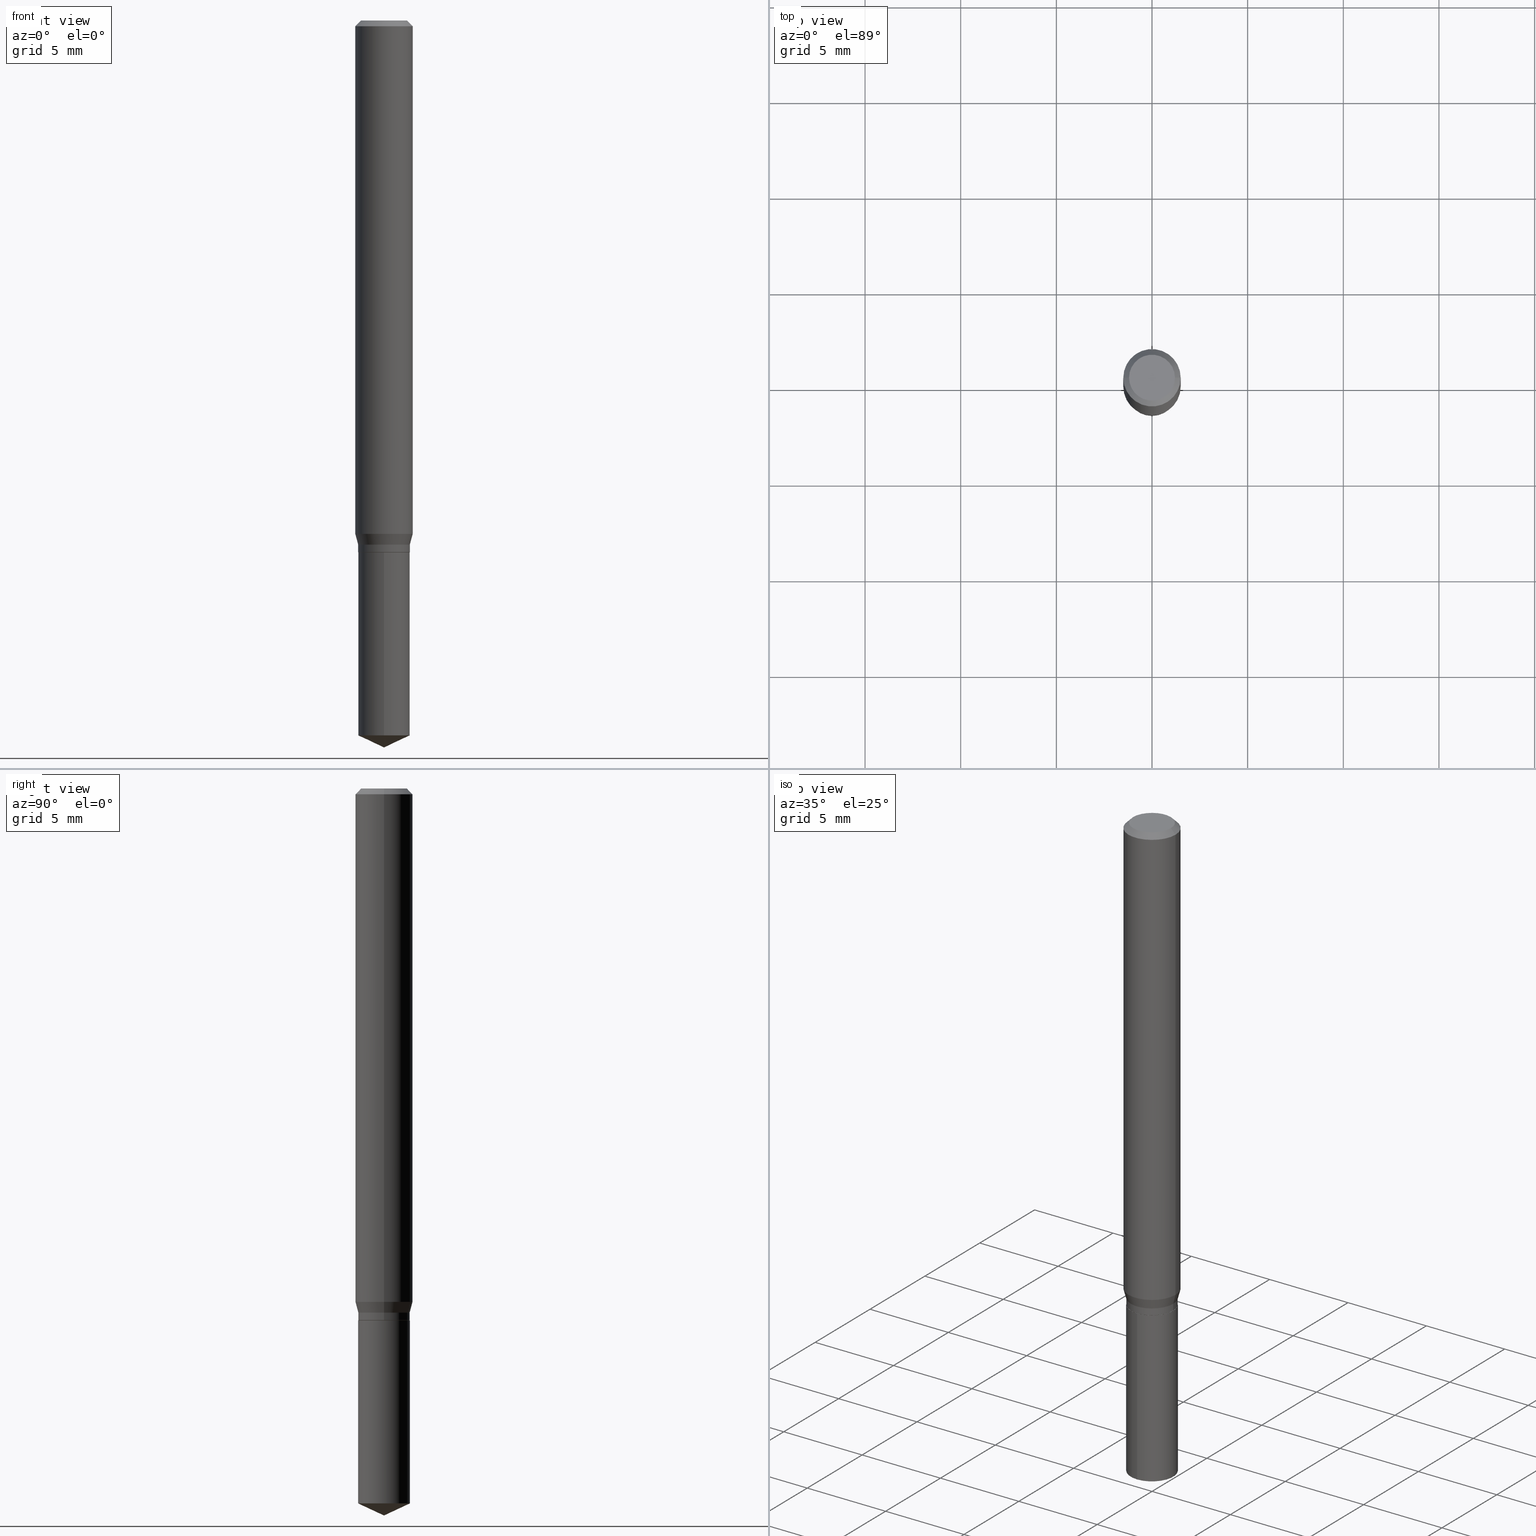
[diagram: canonical four-view strip — front | top / right | iso, engineering-drawing reading convention]
A machine part, canonical four-view strip (front | top / right | iso — engineering-drawing reading convention). The complete STEP part file that produces these views, byte-faithful:
ISO-10303-21;
HEADER;
FILE_DESCRIPTION (( 'STEP AP203' ),
    '1' );
FILE_NAME ('08028.STEP',
    '2024-04-24T09:17:26',
    ( '' ),
    ( '' ),
    'SwSTEP 2.0',
    'SolidWorks 2023',
    '' );
FILE_SCHEMA (( 'CONFIG_CONTROL_DESIGN' ));
ENDSEC;

DATA;
#1 = PLANE ( 'NONE',  #464 ) ;
#2 = DIRECTION ( 'NONE',  ( -2.445468806185136597E-29, 3.491481338843145583E-15, 1.000000000000000000 ) ) ;
#3 = AXIS2_PLACEMENT_3D ( 'NONE', #309, #272, #78 ) ;
#4 = AXIS2_PLACEMENT_3D ( 'NONE', #86, #268, #162 ) ;
#5 = CALENDAR_DATE ( 2024, 24, 4 ) ;
#6 = ORIENTED_EDGE ( 'NONE', *, *, #259, .T. ) ;
#7 = DIRECTION ( 'NONE',  ( -2.445468806185136597E-29, 3.491481338843145583E-15, 1.000000000000000000 ) ) ;
#8 = PERSON_AND_ORGANIZATION_ROLE ( 'design_owner' ) ;
#9 = AXIS2_PLACEMENT_3D ( 'NONE', #139, #474, #437 ) ;
#10 = DIRECTION ( 'NONE',  ( -2.445468806185136597E-29, 3.491481338843145583E-15, 1.000000000000000000 ) ) ;
#11 = EDGE_LOOP ( 'NONE', ( #376, #87, #143, #140 ) ) ;
#12 = VERTEX_POINT ( 'NONE', #189 ) ;
#13 = CALENDAR_DATE ( 2024, 24, 4 ) ;
#14 = CARTESIAN_POINT ( 'NONE',  ( 2.675342873966538993E-29, -3.819680584694400481E-15, -1.093999999999999861 ) ) ;
#15 = AXIS2_PLACEMENT_3D ( 'NONE', #65, #215, #406 ) ;
#16 = LOCAL_TIME ( 5, 17, 26.00000000000000000, #363 ) ;
#17 = CIRCLE ( 'NONE', #125, 0.05904999999999999832 ) ;
#18 = DIRECTION ( 'NONE',  ( -1.000000000000000000, 6.982962677686265922E-15, -4.876176775795935793E-29 ) ) ;
#19 = APPROVAL ( #305, 'UNSPECIFIED' ) ;
#20 = DIRECTION ( 'NONE',  ( -2.445458899330790108E-29, 3.491495526022433205E-15, 1.000000000000000000 ) ) ;
#21 = DIRECTION ( 'NONE',  ( -2.445468806185136597E-29, 3.491481338843145583E-15, 1.000000000000000000 ) ) ;
#22 = VERTEX_POINT ( 'NONE', #228 ) ;
#23 = APPROVAL ( #343, 'UNSPECIFIED' ) ;
#24 = VECTOR ( 'NONE', #380, 39.37007874015748143 ) ;
#25 = CARTESIAN_POINT ( 'NONE',  ( 0.000000000000000000, 0.000000000000000000, 0.000000000000000000 ) ) ;
#26 = LINE ( 'NONE', #264, #24 ) ;
#27 = CARTESIAN_POINT ( 'NONE',  ( 0.05904999999999999832, -4.463468013801466955E-16, -0.01181000000000007218 ) ) ;
#28 = ORIENTED_EDGE ( 'NONE', *, *, #482, .T. ) ;
#29 = EDGE_CURVE ( 'NONE', #239, #308, #37, .T. ) ;
#30 = EDGE_CURVE ( 'NONE', #217, #249, #197, .T. ) ;
#31 = ORIENTED_EDGE ( 'NONE', *, *, #84, .T. ) ;
#32 = AXIS2_PLACEMENT_3D ( 'NONE', #281, #204, #438 ) ;
#33 = CC_DESIGN_SECURITY_CLASSIFICATION ( #312, ( #43 ) ) ;
#34 = EDGE_CURVE ( 'NONE', #330, #112, #393, .T. ) ;
#35 = CARTESIAN_POINT ( 'NONE',  ( 3.776534640565199420E-16, 0.05314999999999617947, -1.094500000000000028 ) ) ;
#36 = ORIENTED_EDGE ( 'NONE', *, *, #63, .F. ) ;
#37 = LINE ( 'NONE', #235, #480 ) ;
#38 = CARTESIAN_POINT ( 'NONE',  ( 2.676565608369631794E-29, -3.821426325363822773E-15, -1.094499999999999806 ) ) ;
#39 = CARTESIAN_POINT ( 'NONE',  ( -0.04724000000000000421, 3.504923541997677355E-16, -3.380025165670481712E-19 ) ) ;
#40 = DIRECTION ( 'NONE',  ( 0.7071067811866199593, -2.468850131083015945E-15, 0.7071067811864750752 ) ) ;
#41 = CIRCLE ( 'NONE', #135, 0.05904999999999999832 ) ;
#42 = APPROVAL_ROLE ( '' ) ;
#43 = PRODUCT_DEFINITION_FORMATION_WITH_SPECIFIED_SOURCE ( 'ANY', '', #211, .NOT_KNOWN. ) ;
#44 = DIRECTION ( 'NONE',  ( 1.000000000000000000, -6.982962677686269077E-15, 0.000000000000000000 ) ) ;
#45 = CARTESIAN_POINT ( 'NONE',  ( 2.676565608369631794E-29, -3.821426325363822773E-15, -1.094499999999999806 ) ) ;
#46 = ORIENTED_EDGE ( 'NONE', *, *, #221, .F. ) ;
#47 = ADVANCED_FACE ( 'NONE', ( #123 ), #271, .T. ) ;
#48 = DATE_AND_TIME ( #13, #303 ) ;
#49 = CARTESIAN_POINT ( 'NONE',  ( 0.000000000000000000, 0.000000000000000000, 0.000000000000000000 ) ) ;
#50 = VECTOR ( 'NONE', #347, 39.37007874015748854 ) ;
#51 = CONICAL_SURFACE ( 'NONE', #67, 0.05265000000000000235, 0.7853981633975507526 ) ;
#52 = DIRECTION ( 'NONE',  ( -2.445468806185136597E-29, 3.491481338843145583E-15, 1.000000000000000000 ) ) ;
#53 = VECTOR ( 'NONE', #223, 39.37007874015747433 ) ;
#54 = ORIENTED_EDGE ( 'NONE', *, *, #357, .F. ) ;
#55 = PERSON_AND_ORGANIZATION_ROLE ( 'design_supplier' ) ;
#56 = UNCERTAINTY_MEASURE_WITH_UNIT (LENGTH_MEASURE( 1.000000000000000082E-05 ), #118, 'distance_accuracy_value', 'NONE');
#57 = FACE_OUTER_BOUND ( 'NONE', #66, .T. ) ;
#58 = DIRECTION ( 'NONE',  ( -2.445468806185136597E-29, 3.491481338843145583E-15, 1.000000000000000000 ) ) ;
#59 = AXIS2_PLACEMENT_3D ( 'NONE', #288, #284, #95 ) ;
#60 = DIRECTION ( 'NONE',  ( -2.445468806185136597E-29, 3.491481338843145583E-15, 1.000000000000000000 ) ) ;
#61 = SHAPE_DEFINITION_REPRESENTATION ( #354, #196 ) ;
#62 = DIRECTION ( 'NONE',  ( -6.982962677686265922E-15, -1.000000000000000000, 2.569941668545873170E-15 ) ) ;
#63 = EDGE_CURVE ( 'NONE', #101, #199, #293, .T. ) ;
#64 = ORIENTED_EDGE ( 'NONE', *, *, #175, .F. ) ;
#65 = CARTESIAN_POINT ( 'NONE',  ( -9.261924752013118283E-28, 1.322368428517963298E-13, 37.87397874015748300 ) ) ;
#66 = EDGE_LOOP ( 'NONE', ( #46, #328, #371, #488 ) ) ;
#67 = AXIS2_PLACEMENT_3D ( 'NONE', #179, #60, #174 ) ;
#68 = CARTESIAN_POINT ( 'NONE',  ( 2.676565608369631234E-29, -3.821426325363821984E-15, -1.094499999999999806 ) ) ;
#69 = CIRCLE ( 'NONE', #384, 0.05315000000000000280 ) ;
#70 = ADVANCED_FACE ( 'NONE', ( #314 ), #460, .T. ) ;
#71 = EDGE_CURVE ( 'NONE', #199, #423, #434, .T. ) ;
#72 = EDGE_LOOP ( 'NONE', ( #277, #6 ) ) ;
#73 = CARTESIAN_POINT ( 'NONE',  ( 3.598053032648563505E-29, -5.137076823532599623E-15, -1.471315747969061949 ) ) ;
#74 = CIRCLE ( 'NONE', #208, 0.05315000000000000280 ) ;
#75 = ORIENTED_EDGE ( 'NONE', *, *, #138, .F. ) ;
#76 = CARTESIAN_POINT ( 'NONE',  ( 2.888098660104664204E-31, -4.123439461173780263E-17, -0.01181000000000007218 ) ) ;
#77 = CARTESIAN_POINT ( 'NONE',  ( 2.888098660104664204E-31, -4.123439461173780263E-17, -0.01181000000000007218 ) ) ;
#78 = DIRECTION ( 'NONE',  ( 1.000000000000000000, -6.982962677686269077E-15, 0.000000000000000000 ) ) ;
#79 = CARTESIAN_POINT ( 'NONE',  ( 3.776534640565292111E-16, 0.05314999999999617947, -1.094500000000000028 ) ) ;
#80 = CONICAL_SURFACE ( 'NONE', #421, 0.05265000000000000235, 0.7853981633975507526 ) ;
#81 = DATE_AND_TIME ( #202, #465 ) ;
#82 = EDGE_CURVE ( 'NONE', #330, #131, #366, .T. ) ;
#83 = CARTESIAN_POINT ( 'NONE',  ( 2.888098660104664204E-31, -4.123439461173780263E-17, -0.01181000000000007218 ) ) ;
#84 = EDGE_CURVE ( 'NONE', #12, #101, #213, .T. ) ;
#85 = DIRECTION ( 'NONE',  ( -2.445468806185136877E-29, 3.491481338843145188E-15, 1.000000000000000000 ) ) ;
#86 = CARTESIAN_POINT ( 'NONE',  ( 8.265746106709734507E-48, -1.180129479067563789E-33, -3.380025165646692144E-19 ) ) ;
#87 = ORIENTED_EDGE ( 'NONE', *, *, #324, .T. ) ;
#88 = PERSON_AND_ORGANIZATION ( #176, #401 ) ;
#89 = CARTESIAN_POINT ( 'NONE',  ( -0.05265000000000000235, -3.444676347812018610E-15, -1.094499999999999806 ) ) ;
#90 = DIRECTION ( 'NONE',  ( -2.445468806185136597E-29, 3.491481338843145583E-15, 1.000000000000000000 ) ) ;
#91 = DIRECTION ( 'NONE',  ( -2.445468806185136597E-29, 3.491481338843145583E-15, 1.000000000000000000 ) ) ;
#92 = AXIS2_PLACEMENT_3D ( 'NONE', #191, #2, #157 ) ;
#93 = CARTESIAN_POINT ( 'NONE',  ( 0.000000000000000000, 0.000000000000000000, 0.000000000000000000 ) ) ;
#94 = ORIENTED_EDGE ( 'NONE', *, *, #132, .F. ) ;
#95 = DIRECTION ( 'NONE',  ( 1.000000000000000000, -6.982962677686268288E-15, 0.000000000000000000 ) ) ;
#96 = MANIFOLD_SOLID_BREP ( 'Body-Move/Copy2[1]', #397 ) ;
#97 = DIRECTION ( 'NONE',  ( -2.445468806185136597E-29, 3.491481338843145583E-15, 1.000000000000000000 ) ) ;
#98 = DIRECTION ( 'NONE',  ( 1.000000000000000000, -6.982962677686265922E-15, 4.876176775795935793E-29 ) ) ;
#99 = DIRECTION ( 'NONE',  ( 1.000000000000000000, -6.982962677686267499E-15, 4.876176775795935232E-29 ) ) ;
#100 = ADVANCED_FACE ( 'NONE', ( #57 ), #247, .T. ) ;
#101 = VERTEX_POINT ( 'NONE', #250 ) ;
#102 = PLANE ( 'NONE',  #428 ) ;
#103 = CC_DESIGN_PERSON_AND_ORGANIZATION_ASSIGNMENT ( #200, #234, ( #312 ) ) ;
#104 = EDGE_LOOP ( 'NONE', ( #479, #298, #115, #150 ) ) ;
#105 = DIRECTION ( 'NONE',  ( -6.328713451373382000E-15, -0.9063077870366501587, 0.4226182617406989972 ) ) ;
#106 = ORIENTED_EDGE ( 'NONE', *, *, #311, .T. ) ;
#107 = AXIS2_PLACEMENT_3D ( 'NONE', #49, #7, #201 ) ;
#108 = APPROVAL_PERSON_ORGANIZATION ( #388, #448, #42 ) ;
#109 = EDGE_LOOP ( 'NONE', ( #258, #106, #458, #378 ) ) ;
#110 = CC_DESIGN_PERSON_AND_ORGANIZATION_ASSIGNMENT ( #238, #55, ( #43 ) ) ;
#111 = DIRECTION ( 'NONE',  ( -2.445468806185136597E-29, 3.491481338843145583E-15, 1.000000000000000000 ) ) ;
#112 = VERTEX_POINT ( 'NONE', #144 ) ;
#113 = DIRECTION ( 'NONE',  ( -2.445468806185136877E-29, 3.491481338843145188E-15, 1.000000000000000000 ) ) ;
#114 = CARTESIAN_POINT ( 'NONE',  ( -3.711444663189982974E-16, -0.05315000000000382613, -1.094499999999999806 ) ) ;
#115 = ORIENTED_EDGE ( 'NONE', *, *, #445, .T. ) ;
#116 = CARTESIAN_POINT ( 'NONE',  ( -0.05315000000000000280, 3.776534640564932687E-16, -2.614414000470482529E-30 ) ) ;
#117 = CARTESIAN_POINT ( 'NONE',  ( 2.888098660104664204E-31, -4.123439461173780263E-17, -0.01181000000000007218 ) ) ;
#118 =( CONVERSION_BASED_UNIT ( 'INCH', #304 ) LENGTH_UNIT ( ) NAMED_UNIT ( #155 ) );
#119 = APPROVAL_ROLE ( '' ) ;
#120 = ADVANCED_FACE ( 'NONE', ( #329 ), #291, .T. ) ;
#121 = EDGE_CURVE ( 'NONE', #112, #131, #134, .T. ) ;
#122 = DIRECTION ( 'NONE',  ( -2.445468806185136597E-29, 3.491481338843145583E-15, 1.000000000000000000 ) ) ;
#123 = FACE_OUTER_BOUND ( 'NONE', #169, .T. ) ;
#124 = AXIS2_PLACEMENT_3D ( 'NONE', #469, #248, #216 ) ;
#125 = AXIS2_PLACEMENT_3D ( 'NONE', #77, #375, #192 ) ;
#126 = APPROVAL_ROLE ( '' ) ;
#127 = FACE_OUTER_BOUND ( 'NONE', #429, .T. ) ;
#128 = CARTESIAN_POINT ( 'NONE',  ( 3.658672935554494692E-29, -5.223595400746700193E-15, -1.496099999999999985 ) ) ;
#129 = DATE_AND_TIME ( #5, #187 ) ;
#130 = DIRECTION ( 'NONE',  ( 1.000000000000000000, -6.982962677686268288E-15, 0.000000000000000000 ) ) ;
#131 = VERTEX_POINT ( 'NONE', #252 ) ;
#132 = EDGE_CURVE ( 'NONE', #217, #308, #261, .T. ) ;
#133 = PERSON_AND_ORGANIZATION ( #176, #401 ) ;
#134 = CIRCLE ( 'NONE', #32, 0.05315000000000000280 ) ;
#135 = AXIS2_PLACEMENT_3D ( 'NONE', #83, #122, #266 ) ;
#136 = CALENDAR_DATE ( 2024, 24, 4 ) ;
#137 = CARTESIAN_POINT ( 'NONE',  ( 0.05315000000000000280, -4.190825051013426339E-15, -1.093999999999999861 ) ) ;
#138 = EDGE_CURVE ( 'NONE', #308, #217, #254, .T. ) ;
#139 = CARTESIAN_POINT ( 'NONE',  ( 2.637682654351288218E-29, -3.765911772076216593E-15, -1.078600000000000003 ) ) ;
#140 = ORIENTED_EDGE ( 'NONE', *, *, #30, .F. ) ;
#141 = PRODUCT_DEFINITION ( 'UNKNOWN', '', #43, #205 ) ;
#142 = DIRECTION ( 'NONE',  ( -6.982962677686267499E-15, -1.000000000000000000, 3.520397390770433360E-15 ) ) ;
#143 = ORIENTED_EDGE ( 'NONE', *, *, #348, .F. ) ;
#144 = CARTESIAN_POINT ( 'NONE',  ( 3.776534640565292111E-16, 0.05314999999999486802, -1.471315747969062171 ) ) ;
#145 = ORIENTED_EDGE ( 'NONE', *, *, #331, .F. ) ;
#146 = PRODUCT_RELATED_PRODUCT_CATEGORY ( 'detail', '', ( #211 ) ) ;
#147 = ORIENTED_EDGE ( 'NONE', *, *, #30, .T. ) ;
#148 = AXIS2_PLACEMENT_3D ( 'NONE', #476, #206, #62 ) ;
#149 = DIRECTION ( 'NONE',  ( -6.982962677686265922E-15, -1.000000000000000000, 5.139883337091746339E-15 ) ) ;
#150 = ORIENTED_EDGE ( 'NONE', *, *, #259, .F. ) ;
#151 =( LENGTH_UNIT ( ) NAMED_UNIT ( * ) SI_UNIT ( $, .METRE. ) );
#152 = ORIENTED_EDGE ( 'NONE', *, *, #439, .T. ) ;
#153 = ADVANCED_FACE ( 'NONE', ( #368 ), #102, .F. ) ;
#154 = CARTESIAN_POINT ( 'NONE',  ( 2.676565608369631794E-29, -3.821426325363822773E-15, -1.094499999999999806 ) ) ;
#155 = DIMENSIONAL_EXPONENTS ( 1.000000000000000000, 0.000000000000000000, 0.000000000000000000, 0.000000000000000000, 0.000000000000000000, 0.000000000000000000, 0.000000000000000000 ) ;
#156 = CIRCLE ( 'NONE', #3, 0.05315000000000000280 ) ;
#157 = DIRECTION ( 'NONE',  ( 1.000000000000000000, -6.982962677686266711E-15, 4.876185090822587894E-29 ) ) ;
#158 = ADVANCED_FACE ( 'NONE', ( #402 ), #51, .T. ) ;
#159 = PERSON_AND_ORGANIZATION ( #176, #401 ) ;
#160 = ORIENTED_EDGE ( 'NONE', *, *, #207, .T. ) ;
#161 = CARTESIAN_POINT ( 'NONE',  ( 2.637682654351288218E-29, -3.765911772076216593E-15, -1.078600000000000003 ) ) ;
#162 = DIRECTION ( 'NONE',  ( 1.000000000000000000, -6.982962677686266711E-15, 4.876185090822587894E-29 ) ) ;
#163 = VERTEX_POINT ( 'NONE', #210 ) ;
#164 = CONICAL_SURFACE ( 'NONE', #352, 84.42940631927483253, 1.134464013796318227 ) ;
#165 = PERSON_AND_ORGANIZATION ( #176, #401 ) ;
#166 = DIRECTION ( 'NONE',  ( 1.000000000000000000, -6.982962677686265133E-15, 0.000000000000000000 ) ) ;
#167 = DIRECTION ( 'NONE',  ( 1.000000000000000000, 0.000000000000000000, 0.000000000000000000 ) ) ;
#168 = APPLICATION_CONTEXT ( 'configuration controlled 3d designs of mechanical parts and assemblies' ) ;
#169 = EDGE_LOOP ( 'NONE', ( #447, #454, #147, #477 ) ) ;
#170 = DATE_AND_TIME ( #356, #269 ) ;
#171 = DIRECTION ( 'NONE',  ( -2.445468806185136877E-29, 3.491481338843145188E-15, 1.000000000000000000 ) ) ;
#172 = CIRCLE ( 'NONE', #59, 0.05265000000000000235 ) ;
#173 = VECTOR ( 'NONE', #105, 39.37007874015748143 ) ;
#174 = DIRECTION ( 'NONE',  ( 1.000000000000000000, -6.982962677686268288E-15, 0.000000000000000000 ) ) ;
#175 = EDGE_CURVE ( 'NONE', #163, #239, #172, .T. ) ;
#176 = PERSON ( 'UNSPECIFIED', 'UNSPECIFIED', 'UNSPECIFIED', ('UNSPECIFIED'), ('UNSPECIFIED'), ('UNSPECIFIED') ) ;
#177 = ADVANCED_FACE ( 'NONE', ( #320 ), #164, .T. ) ;
#178 = LINE ( 'NONE', #471, #391 ) ;
#179 = CARTESIAN_POINT ( 'NONE',  ( 2.676565608369631234E-29, -3.821426325363821984E-15, -1.094499999999999806 ) ) ;
#180 = ORIENTED_EDGE ( 'NONE', *, *, #221, .T. ) ;
#181 = VECTOR ( 'NONE', #486, 39.37007874015748143 ) ;
#182 = AXIS2_PLACEMENT_3D ( 'NONE', #185, #335, #167 ) ;
#183 = CARTESIAN_POINT ( 'NONE',  ( 3.658651059288795076E-29, -5.223626456482161457E-15, -1.496099999999999985 ) ) ;
#184 = ORIENTED_EDGE ( 'NONE', *, *, #34, .T. ) ;
#185 = CARTESIAN_POINT ( 'NONE',  ( 0.000000000000000000, 0.000000000000000000, 0.000000000000000000 ) ) ;
#186 = ORIENTED_EDGE ( 'NONE', *, *, #385, .T. ) ;
#187 = LOCAL_TIME ( 5, 17, 26.00000000000000000, #386 ) ;
#188 =( NAMED_UNIT ( * ) SI_UNIT ( $, .STERADIAN. ) SOLID_ANGLE_UNIT ( ) );
#189 = CARTESIAN_POINT ( 'NONE',  ( -0.05315000000000000280, -3.415142714328815466E-15, -1.078600000000000003 ) ) ;
#190 = DIRECTION ( 'NONE',  ( 2.445468806185136597E-29, -3.491481338843145583E-15, -1.000000000000000000 ) ) ;
#191 = CARTESIAN_POINT ( 'NONE',  ( 8.265746106709734507E-48, -1.180129479067563789E-33, -3.380025165646692144E-19 ) ) ;
#192 = DIRECTION ( 'NONE',  ( 1.000000000000000000, -6.982962677686266711E-15, 0.000000000000000000 ) ) ;
#193 = CONICAL_SURFACE ( 'NONE', #481, 0.05315000000000000280, 0.2617993877991500740 ) ;
#194 = DATE_TIME_ROLE ( 'classification_date' ) ;
#195 = CARTESIAN_POINT ( 'NONE',  ( 0.05315000000000000280, -4.137056238395241663E-15, -1.078600000000000003 ) ) ;
#196 = ADVANCED_BREP_SHAPE_REPRESENTATION ( '08028', ( #96, #270, #182 ), #456 ) ;
#197 = LINE ( 'NONE', #350, #267 ) ;
#198 = FACE_OUTER_BOUND ( 'NONE', #484, .T. ) ;
#199 = VERTEX_POINT ( 'NONE', #396 ) ;
#200 = PERSON_AND_ORGANIZATION ( #176, #401 ) ;
#201 = DIRECTION ( 'NONE',  ( 1.000000000000000000, -6.982962677686267499E-15, 4.876176775795935232E-29 ) ) ;
#202 = CALENDAR_DATE ( 2024, 24, 4 ) ;
#203 = ORIENTED_EDGE ( 'NONE', *, *, #385, .F. ) ;
#204 = DIRECTION ( 'NONE',  ( -2.445458899330790108E-29, 3.491495526022433205E-15, 1.000000000000000000 ) ) ;
#205 = DESIGN_CONTEXT ( 'detailed design', #323, 'design' ) ;
#206 = DIRECTION ( 'NONE',  ( -2.445458899330790108E-29, 3.491495526022433205E-15, 1.000000000000000000 ) ) ;
#207 = EDGE_CURVE ( 'NONE', #199, #101, #441, .T. ) ;
#208 = AXIS2_PLACEMENT_3D ( 'NONE', #45, #230, #351 ) ;
#209 = CONICAL_SURFACE ( 'NONE', #279, 0.05904999999999999832, 0.7853981633974452814 ) ;
#210 = CARTESIAN_POINT ( 'NONE',  ( 0.05265000000000000235, -4.189079310344004047E-15, -1.094499999999999806 ) ) ;
#211 = PRODUCT ( '08028', '08028', '', ( #310 ) ) ;
#212 = CYLINDRICAL_SURFACE ( 'NONE', #124, 0.05315000000000000280 ) ;
#213 = LINE ( 'NONE', #282, #473 ) ;
#214 = ORIENTED_EDGE ( 'NONE', *, *, #467, .F. ) ;
#215 = DIRECTION ( 'NONE',  ( -2.445458899330790108E-29, 3.491495526022433205E-15, 1.000000000000000000 ) ) ;
#216 = DIRECTION ( 'NONE',  ( -6.982962677686265922E-15, -1.000000000000000000, 2.569941668545873170E-15 ) ) ;
#217 = VERTEX_POINT ( 'NONE', #137 ) ;
#218 = EDGE_LOOP ( 'NONE', ( #256, #290, #472 ) ) ;
#219 = LINE ( 'NONE', #35, #181 ) ;
#220 = EDGE_LOOP ( 'NONE', ( #292, #203, #295, #315 ) ) ;
#221 = EDGE_CURVE ( 'NONE', #101, #300, #178, .T. ) ;
#222 = EDGE_CURVE ( 'NONE', #12, #249, #244, .T. ) ;
#223 = DIRECTION ( 'NONE',  ( 0.2588190451025213501, 1.565188264969621968E-15, 0.9659258262890682012 ) ) ;
#224 = AXIS2_PLACEMENT_3D ( 'NONE', #427, #91, #99 ) ;
#225 = CONICAL_SURFACE ( 'NONE', #392, 0.05315000000000000280, 0.2617993877991500740 ) ;
#226 = ADVANCED_FACE ( 'NONE', ( #404 ), #285, .T. ) ;
#227 = CARTESIAN_POINT ( 'NONE',  ( 2.637682654351288218E-29, -3.765911772076216593E-15, -1.078600000000000003 ) ) ;
#228 = CARTESIAN_POINT ( 'NONE',  ( -3.711444663189982974E-16, -0.05315000000000382613, -1.094499999999999806 ) ) ;
#229 = DIRECTION ( 'NONE',  ( -2.445458899330790108E-29, 3.491495526022433205E-15, 1.000000000000000000 ) ) ;
#230 = DIRECTION ( 'NONE',  ( -2.445458899330790108E-29, 3.491495526022433205E-15, 1.000000000000000000 ) ) ;
#231 = AXIS2_PLACEMENT_3D ( 'NONE', #435, #21, #470 ) ;
#232 = CC_DESIGN_APPROVAL ( #448, ( #43 ) ) ;
#233 = APPROVAL_PERSON_ORGANIZATION ( #280, #23, #126 ) ;
#234 = PERSON_AND_ORGANIZATION_ROLE ( 'classification_officer' ) ;
#235 = CARTESIAN_POINT ( 'NONE',  ( -0.05265000000000000235, -3.447325574986129417E-15, -1.094499999999999806 ) ) ;
#236 = ORIENTED_EDGE ( 'NONE', *, *, #29, .T. ) ;
#237 = ADVANCED_FACE ( 'NONE', ( #263 ), #80, .T. ) ;
#238 = PERSON_AND_ORGANIZATION ( #176, #401 ) ;
#239 = VERTEX_POINT ( 'NONE', #89 ) ;
#240 = VECTOR ( 'NONE', #113, 39.37007874015748143 ) ;
#241 = ORIENTED_EDGE ( 'NONE', *, *, #84, .F. ) ;
#242 = CARTESIAN_POINT ( 'NONE',  ( -9.261924752013118283E-28, 1.322368428517963298E-13, 37.87397874015748300 ) ) ;
#243 = DIRECTION ( 'NONE',  ( -0.2588190451025213501, 5.211531920934551042E-15, 0.9659258262890682012 ) ) ;
#244 = CIRCLE ( 'NONE', #9, 0.05315000000000000280 ) ;
#245 = CC_DESIGN_APPROVAL ( #19, ( #312 ) ) ;
#246 = FACE_OUTER_BOUND ( 'NONE', #109, .T. ) ;
#247 = CYLINDRICAL_SURFACE ( 'NONE', #398, 0.05905000000000006771 ) ;
#248 = DIRECTION ( 'NONE',  ( -2.445458899330790108E-29, 3.491495526022433205E-15, 1.000000000000000000 ) ) ;
#249 = VERTEX_POINT ( 'NONE', #195 ) ;
#250 = CARTESIAN_POINT ( 'NONE',  ( -0.05905000000000013016, -3.269457010683451957E-15, -1.056580900235343234 ) ) ;
#251 = CC_DESIGN_DATE_AND_TIME_ASSIGNMENT ( #170, #194, ( #312 ) ) ;
#252 = CARTESIAN_POINT ( 'NONE',  ( -3.711444663189891269E-16, -0.05315000000000515146, -1.471315747969061727 ) ) ;
#253 = VERTEX_POINT ( 'NONE', #79 ) ;
#254 = CIRCLE ( 'NONE', #327, 0.05315000000000000280 ) ;
#255 = CC_DESIGN_APPROVAL ( #23, ( #141 ) ) ;
#256 = ORIENTED_EDGE ( 'NONE', *, *, #34, .F. ) ;
#257 = CARTESIAN_POINT ( 'NONE',  ( 0.05315000000000000280, -4.137056238395241663E-15, -1.078600000000000003 ) ) ;
#258 = ORIENTED_EDGE ( 'NONE', *, *, #467, .T. ) ;
#259 = EDGE_CURVE ( 'NONE', #253, #22, #74, .T. ) ;
#260 = ORIENTED_EDGE ( 'NONE', *, *, #432, .T. ) ;
#261 = CIRCLE ( 'NONE', #369, 0.05315000000000000280 ) ;
#262 = CARTESIAN_POINT ( 'NONE',  ( 2.676565608369631234E-29, -3.821426325363821984E-15, -1.094499999999999806 ) ) ;
#263 = FACE_OUTER_BOUND ( 'NONE', #367, .T. ) ;
#264 = CARTESIAN_POINT ( 'NONE',  ( -0.05904999999999999832, 3.711095515056362547E-16, -0.01181000000000007218 ) ) ;
#265 = LINE ( 'NONE', #418, #377 ) ;
#266 = DIRECTION ( 'NONE',  ( 1.000000000000000000, -6.982962677686266711E-15, 0.000000000000000000 ) ) ;
#267 = VECTOR ( 'NONE', #85, 39.37007874015748143 ) ;
#268 = DIRECTION ( 'NONE',  ( -2.445468806185136597E-29, 3.491481338843145583E-15, 1.000000000000000000 ) ) ;
#269 = LOCAL_TIME ( 5, 17, 26.00000000000000000, #459 ) ;
#270 = MANIFOLD_SOLID_BREP ( 'Body-Move/Copy2[2]', #360 ) ;
#271 = CYLINDRICAL_SURFACE ( 'NONE', #107, 0.05315000000000000280 ) ;
#272 = DIRECTION ( 'NONE',  ( -2.445468806185136597E-29, 3.491481338843145583E-15, 1.000000000000000000 ) ) ;
#273 = APPROVAL_DATE_TIME ( #81, #23 ) ;
#274 = CYLINDRICAL_SURFACE ( 'NONE', #342, 0.05905000000000006771 ) ;
#275 = ADVANCED_FACE ( 'NONE', ( #462 ), #193, .T. ) ;
#276 = ORIENTED_EDGE ( 'NONE', *, *, #82, .F. ) ;
#277 = ORIENTED_EDGE ( 'NONE', *, *, #433, .T. ) ;
#278 = DIRECTION ( 'NONE',  ( -0.7071067811866199593, 7.493145998870616062E-15, 0.7071067811864750752 ) ) ;
#279 = AXIS2_PLACEMENT_3D ( 'NONE', #76, #190, #457 ) ;
#280 = PERSON_AND_ORGANIZATION ( #176, #401 ) ;
#281 = CARTESIAN_POINT ( 'NONE',  ( 3.598053032648563505E-29, -5.137076823532599623E-15, -1.471315747969061949 ) ) ;
#282 = CARTESIAN_POINT ( 'NONE',  ( -0.05315000000000000280, -3.388258308019723127E-15, -1.078600000000000003 ) ) ;
#283 = DIRECTION ( 'NONE',  ( -2.438088387897960049E-29, 3.491481338843145188E-15, 1.000000000000000000 ) ) ;
#284 = DIRECTION ( 'NONE',  ( -2.445468806185136597E-29, 3.491481338843145583E-15, 1.000000000000000000 ) ) ;
#285 = CONICAL_SURFACE ( 'NONE', #15, 84.42940631927483253, 1.134464013796318227 ) ;
#286 = CONICAL_SURFACE ( 'NONE', #318, 0.05904999999999999832, 0.7853981633974452814 ) ;
#287 = EDGE_LOOP ( 'NONE', ( #475, #395, #28, #75 ) ) ;
#288 = CARTESIAN_POINT ( 'NONE',  ( 2.676565608369631234E-29, -3.821426325363821984E-15, -1.094499999999999806 ) ) ;
#289 = ADVANCED_FACE ( 'NONE', ( #344 ), #306, .F. ) ;
#290 = ORIENTED_EDGE ( 'NONE', *, *, #82, .T. ) ;
#291 = CYLINDRICAL_SURFACE ( 'NONE', #148, 0.05315000000000000280 ) ;
#292 = ORIENTED_EDGE ( 'NONE', *, *, #439, .F. ) ;
#293 = CIRCLE ( 'NONE', #383, 0.05905000000000013016 ) ;
#294 = CARTESIAN_POINT ( 'NONE',  ( 0.05904999999999999832, -4.535783407291118600E-16, -0.01181000000000007218 ) ) ;
#295 = ORIENTED_EDGE ( 'NONE', *, *, #331, .T. ) ;
#296 = ADVANCED_FACE ( 'NONE', ( #246 ), #212, .T. ) ;
#297 = APPROVAL_PERSON_ORGANIZATION ( #159, #19, #119 ) ;
#298 = ORIENTED_EDGE ( 'NONE', *, *, #121, .T. ) ;
#299 = LINE ( 'NONE', #27, #362 ) ;
#300 = VERTEX_POINT ( 'NONE', #374 ) ;
#301 = DIRECTION ( 'NONE',  ( 1.000000000000000000, -6.982962677686269077E-15, 0.000000000000000000 ) ) ;
#302 = CIRCLE ( 'NONE', #92, 0.04724000000000000421 ) ;
#303 = LOCAL_TIME ( 5, 17, 26.00000000000000000, #430 ) ;
#304 = LENGTH_MEASURE_WITH_UNIT ( LENGTH_MEASURE( 0.02539999999999999897 ), #151 );
#305 = APPROVAL_STATUS ( 'not_yet_approved' ) ;
#306 = PLANE ( 'NONE',  #332 ) ;
#307 = DIRECTION ( 'NONE',  ( 2.445458899330789267E-29, -3.491495526022433599E-15, -1.000000000000000000 ) ) ;
#308 = VERTEX_POINT ( 'NONE', #337 ) ;
#309 = CARTESIAN_POINT ( 'NONE',  ( 2.637682654351288218E-29, -3.765911772076216593E-15, -1.078600000000000003 ) ) ;
#310 = MECHANICAL_CONTEXT ( 'NONE', #168, 'mechanical' ) ;
#311 = EDGE_CURVE ( 'NONE', #112, #253, #219, .T. ) ;
#312 = SECURITY_CLASSIFICATION ( '', '', #390 ) ;
#313 = CARTESIAN_POINT ( 'NONE',  ( 2.583835632736541503E-29, -3.689032496149791844E-15, -1.056580900235343234 ) ) ;
#314 = FACE_OUTER_BOUND ( 'NONE', #11, .T. ) ;
#315 = ORIENTED_EDGE ( 'NONE', *, *, #379, .T. ) ;
#316 = PERSON_AND_ORGANIZATION_ROLE ( 'creator' ) ;
#317 = CARTESIAN_POINT ( 'NONE',  ( 4.132873053354867254E-48, -5.900647395337818946E-34, -1.690012582823346072E-19 ) ) ;
#318 = AXIS2_PLACEMENT_3D ( 'NONE', #117, #419, #478 ) ;
#319 = DATE_AND_TIME ( #136, #16 ) ;
#320 = FACE_OUTER_BOUND ( 'NONE', #218, .T. ) ;
#321 = CARTESIAN_POINT ( 'NONE',  ( 0.05905000000000006771, -4.123439461173745257E-16, 2.879382386107503723E-30 ) ) ;
#322 = VERTEX_POINT ( 'NONE', #417 ) ;
#323 = APPLICATION_CONTEXT ( 'configuration controlled 3d designs of mechanical parts and assemblies' ) ;
#324 = EDGE_CURVE ( 'NONE', #308, #12, #446, .T. ) ;
#325 = DIRECTION ( 'NONE',  ( -2.445468806185136877E-29, 3.491481338843145188E-15, 1.000000000000000000 ) ) ;
#326 = APPROVAL_DATE_TIME ( #319, #19 ) ;
#327 = AXIS2_PLACEMENT_3D ( 'NONE', #358, #58, #361 ) ;
#328 = ORIENTED_EDGE ( 'NONE', *, *, #63, .T. ) ;
#329 = FACE_OUTER_BOUND ( 'NONE', #104, .T. ) ;
#330 = VERTEX_POINT ( 'NONE', #449 ) ;
#331 = EDGE_CURVE ( 'NONE', #336, #300, #26, .T. ) ;
#332 = AXIS2_PLACEMENT_3D ( 'NONE', #359, #283, #98 ) ;
#333 = EDGE_LOOP ( 'NONE', ( #241, #405, #260, #36 ) ) ;
#334 = CIRCLE ( 'NONE', #4, 0.04724000000000000421 ) ;
#335 = DIRECTION ( 'NONE',  ( 0.000000000000000000, 0.000000000000000000, 1.000000000000000000 ) ) ;
#336 = VERTEX_POINT ( 'NONE', #39 ) ;
#337 = CARTESIAN_POINT ( 'NONE',  ( -0.05315000000000000280, -3.415142714328815466E-15, -1.093999999999999861 ) ) ;
#338 = LINE ( 'NONE', #257, #53 ) ;
#339 = CC_DESIGN_DATE_AND_TIME_ASSIGNMENT ( #129, #424, ( #141 ) ) ;
#340 = LINE ( 'NONE', #114, #452 ) ;
#341 = CIRCLE ( 'NONE', #407, 0.05265000000000000235 ) ;
#342 = AXIS2_PLACEMENT_3D ( 'NONE', #93, #372, #415 ) ;
#343 = APPROVAL_STATUS ( 'not_yet_approved' ) ;
#344 = FACE_OUTER_BOUND ( 'NONE', #353, .T. ) ;
#345 = FACE_OUTER_BOUND ( 'NONE', #72, .T. ) ;
#346 = EDGE_CURVE ( 'NONE', #322, #336, #302, .T. ) ;
#347 = DIRECTION ( 'NONE',  ( 6.439704144417036664E-15, 0.9063077870366530453, 0.4226182617406927244 ) ) ;
#348 = EDGE_CURVE ( 'NONE', #249, #12, #156, .T. ) ;
#349 = DIRECTION ( 'NONE',  ( 6.982962677686265922E-15, 1.000000000000000000, -3.491495526022433599E-15 ) ) ;
#350 = CARTESIAN_POINT ( 'NONE',  ( 0.05315000000000000280, -3.711444663190251187E-16, 2.591687956335539675E-30 ) ) ;
#351 = DIRECTION ( 'NONE',  ( -6.982962677686265922E-15, -1.000000000000000000, 2.569941668545873170E-15 ) ) ;
#352 = AXIS2_PLACEMENT_3D ( 'NONE', #242, #20, #142 ) ;
#353 = EDGE_LOOP ( 'NONE', ( #64, #54 ) ) ;
#354 = PRODUCT_DEFINITION_SHAPE ( 'NONE', 'NONE',  #141 ) ;
#355 = ORIENTED_EDGE ( 'NONE', *, *, #485, .F. ) ;
#356 = CALENDAR_DATE ( 2024, 24, 4 ) ;
#357 = EDGE_CURVE ( 'NONE', #239, #163, #341, .T. ) ;
#358 = CARTESIAN_POINT ( 'NONE',  ( 2.675342873966538993E-29, -3.819680584694400481E-15, -1.093999999999999861 ) ) ;
#359 = CARTESIAN_POINT ( 'NONE',  ( 4.659387230379302898E-29, -9.819129074478338943E-16, -1.094499999999999806 ) ) ;
#360 = CLOSED_SHELL ( 'NONE', ( #237, #400, #414, #420, #70, #47, #275, #100, #468, #153, #289, #158 ) ) ;
#361 = DIRECTION ( 'NONE',  ( 1.000000000000000000, -6.982962677686269077E-15, 0.000000000000000000 ) ) ;
#362 = VECTOR ( 'NONE', #381, 39.37007874015748143 ) ;
#363 = COORDINATED_UNIVERSAL_TIME_OFFSET ( 5, 0, .BEHIND. ) ;
#364 = DIRECTION ( 'NONE',  ( 1.000000000000000000, -6.982962677686269077E-15, 0.000000000000000000 ) ) ;
#365 = ADVANCED_FACE ( 'NONE', ( #345 ), #1, .F. ) ;
#366 = LINE ( 'NONE', #183, #173 ) ;
#367 = EDGE_LOOP ( 'NONE', ( #370, #236, #94, #426 ) ) ;
#368 = FACE_OUTER_BOUND ( 'NONE', #443, .T. ) ;
#369 = AXIS2_PLACEMENT_3D ( 'NONE', #14, #97, #364 ) ;
#370 = ORIENTED_EDGE ( 'NONE', *, *, #175, .T. ) ;
#371 = ORIENTED_EDGE ( 'NONE', *, *, #71, .T. ) ;
#372 = DIRECTION ( 'NONE',  ( -2.445468806185136597E-29, 3.491481338843145583E-15, 1.000000000000000000 ) ) ;
#373 = ORIENTED_EDGE ( 'NONE', *, *, #207, .F. ) ;
#374 = CARTESIAN_POINT ( 'NONE',  ( -0.05904999999999999832, -1.445557959914424505E-15, -0.01181000000000007218 ) ) ;
#375 = DIRECTION ( 'NONE',  ( -2.445468806185136597E-29, 3.491481338843145583E-15, 1.000000000000000000 ) ) ;
#376 = ORIENTED_EDGE ( 'NONE', *, *, #132, .T. ) ;
#377 = VECTOR ( 'NONE', #40, 39.37007874015748143 ) ;
#378 = ORIENTED_EDGE ( 'NONE', *, *, #445, .F. ) ;
#379 = EDGE_CURVE ( 'NONE', #300, #423, #41, .T. ) ;
#380 = DIRECTION ( 'NONE',  ( -0.7071067811865453523, 2.468850131082234184E-15, -0.7071067811865496822 ) ) ;
#381 = DIRECTION ( 'NONE',  ( 0.7071067811865453523, -7.319954787623248157E-15, -0.7071067811865496822 ) ) ;
#382 = APPROVAL_DATE_TIME ( #48, #448 ) ;
#383 = AXIS2_PLACEMENT_3D ( 'NONE', #313, #389, #166 ) ;
#384 = AXIS2_PLACEMENT_3D ( 'NONE', #154, #229, #483 ) ;
#385 = EDGE_CURVE ( 'NONE', #336, #322, #334, .T. ) ;
#386 = COORDINATED_UNIVERSAL_TIME_OFFSET ( 5, 0, .BEHIND. ) ;
#387 = EDGE_LOOP ( 'NONE', ( #276, #184, #214 ) ) ;
#388 = PERSON_AND_ORGANIZATION ( #176, #401 ) ;
#389 = DIRECTION ( 'NONE',  ( -2.445468806185136597E-29, 3.491481338843145583E-15, 1.000000000000000000 ) ) ;
#390 = SECURITY_CLASSIFICATION_LEVEL ( 'unclassified' ) ;
#391 = VECTOR ( 'NONE', #325, 39.37007874015748143 ) ;
#392 = AXIS2_PLACEMENT_3D ( 'NONE', #227, #111, #301 ) ;
#393 = LINE ( 'NONE', #128, #50 ) ;
#394 = PERSON_AND_ORGANIZATION_ROLE ( 'creator' ) ;
#395 = ORIENTED_EDGE ( 'NONE', *, *, #357, .T. ) ;
#396 = CARTESIAN_POINT ( 'NONE',  ( 0.05905000000000013016, -4.101376442267166764E-15, -1.056580900235343234 ) ) ;
#397 = CLOSED_SHELL ( 'NONE', ( #296, #226, #177, #120, #365 ) ) ;
#398 = AXIS2_PLACEMENT_3D ( 'NONE', #25, #399, #431 ) ;
#399 = DIRECTION ( 'NONE',  ( -2.445468806185136597E-29, 3.491481338843145583E-15, 1.000000000000000000 ) ) ;
#400 = ADVANCED_FACE ( 'NONE', ( #198 ), #209, .T. ) ;
#401 = ORGANIZATION ( 'UNSPECIFIED', 'UNSPECIFIED', '' ) ;
#402 = FACE_OUTER_BOUND ( 'NONE', #287, .T. ) ;
#403 = ORIENTED_EDGE ( 'NONE', *, *, #346, .T. ) ;
#404 = FACE_OUTER_BOUND ( 'NONE', #387, .T. ) ;
#405 = ORIENTED_EDGE ( 'NONE', *, *, #222, .T. ) ;
#406 = DIRECTION ( 'NONE',  ( -6.982962677686267499E-15, -1.000000000000000000, 3.520397390770433360E-15 ) ) ;
#407 = AXIS2_PLACEMENT_3D ( 'NONE', #262, #10, #425 ) ;
#408 = AXIS2_PLACEMENT_3D ( 'NONE', #73, #490, #149 ) ;
#409 = EDGE_LOOP ( 'NONE', ( #440, #31, #373, #416 ) ) ;
#410 = CC_DESIGN_PERSON_AND_ORGANIZATION_ASSIGNMENT ( #88, #316, ( #43 ) ) ;
#411 = APPLICATION_PROTOCOL_DEFINITION ( 'international standard', 'config_control_design', 1994, #168 ) ;
#412 = FACE_OUTER_BOUND ( 'NONE', #409, .T. ) ;
#413 = ORIENTED_EDGE ( 'NONE', *, *, #346, .F. ) ;
#414 = ADVANCED_FACE ( 'NONE', ( #127 ), #274, .T. ) ;
#415 = DIRECTION ( 'NONE',  ( 1.000000000000000000, -6.982962677686266711E-15, 4.876176775795936353E-29 ) ) ;
#416 = ORIENTED_EDGE ( 'NONE', *, *, #432, .F. ) ;
#417 = CARTESIAN_POINT ( 'NONE',  ( 0.04724000000000000421, -3.852183633974369345E-16, -3.380025165621689721E-19 ) ) ;
#418 = CARTESIAN_POINT ( 'NONE',  ( 0.05265000000000000235, -4.189079310344004047E-15, -1.094499999999999806 ) ) ;
#419 = DIRECTION ( 'NONE',  ( 2.445468806185136597E-29, -3.491481338843145583E-15, -1.000000000000000000 ) ) ;
#420 = ADVANCED_FACE ( 'NONE', ( #412 ), #225, .T. ) ;
#421 = AXIS2_PLACEMENT_3D ( 'NONE', #68, #90, #130 ) ;
#422 = CC_DESIGN_PERSON_AND_ORGANIZATION_ASSIGNMENT ( #165, #394, ( #141 ) ) ;
#423 = VERTEX_POINT ( 'NONE', #294 ) ;
#424 = DATE_TIME_ROLE ( 'creation_date' ) ;
#425 = DIRECTION ( 'NONE',  ( 1.000000000000000000, -6.982962677686268288E-15, 0.000000000000000000 ) ) ;
#426 = ORIENTED_EDGE ( 'NONE', *, *, #482, .F. ) ;
#427 = CARTESIAN_POINT ( 'NONE',  ( 0.000000000000000000, 0.000000000000000000, 0.000000000000000000 ) ) ;
#428 = AXIS2_PLACEMENT_3D ( 'NONE', #317, #466, #18 ) ;
#429 = EDGE_LOOP ( 'NONE', ( #160, #180, #355, #463 ) ) ;
#430 = COORDINATED_UNIVERSAL_TIME_OFFSET ( 5, 0, .BEHIND. ) ;
#431 = DIRECTION ( 'NONE',  ( 1.000000000000000000, -6.982962677686266711E-15, 4.876176775795936353E-29 ) ) ;
#432 = EDGE_CURVE ( 'NONE', #249, #199, #338, .T. ) ;
#433 = EDGE_CURVE ( 'NONE', #22, #253, #69, .T. ) ;
#434 = LINE ( 'NONE', #321, #450 ) ;
#435 = CARTESIAN_POINT ( 'NONE',  ( 2.583835632736541503E-29, -3.689032496149791844E-15, -1.056580900235343234 ) ) ;
#436 = ORIENTED_EDGE ( 'NONE', *, *, #485, .T. ) ;
#437 = DIRECTION ( 'NONE',  ( 1.000000000000000000, -6.982962677686269077E-15, 0.000000000000000000 ) ) ;
#438 = DIRECTION ( 'NONE',  ( -6.982962677686265922E-15, -1.000000000000000000, 5.139883337091746339E-15 ) ) ;
#439 = EDGE_CURVE ( 'NONE', #322, #423, #299, .T. ) ;
#440 = ORIENTED_EDGE ( 'NONE', *, *, #348, .T. ) ;
#441 = CIRCLE ( 'NONE', #231, 0.05905000000000013016 ) ;
#442 = CIRCLE ( 'NONE', #408, 0.05315000000000000280 ) ;
#443 = EDGE_LOOP ( 'NONE', ( #186, #403 ) ) ;
#444 =( NAMED_UNIT ( * ) PLANE_ANGLE_UNIT ( ) SI_UNIT ( $, .RADIAN. ) );
#445 = EDGE_CURVE ( 'NONE', #131, #22, #340, .T. ) ;
#446 = LINE ( 'NONE', #116, #240 ) ;
#447 = ORIENTED_EDGE ( 'NONE', *, *, #324, .F. ) ;
#448 = APPROVAL ( #453, 'UNSPECIFIED' ) ;
#449 = CARTESIAN_POINT ( 'NONE',  ( 3.658651059288794515E-29, -5.223626456482161457E-15, -1.496099999999999985 ) ) ;
#450 = VECTOR ( 'NONE', #171, 39.37007874015748143 ) ;
#451 = FACE_OUTER_BOUND ( 'NONE', #220, .T. ) ;
#452 = VECTOR ( 'NONE', #487, 39.37007874015748143 ) ;
#453 = APPROVAL_STATUS ( 'not_yet_approved' ) ;
#454 = ORIENTED_EDGE ( 'NONE', *, *, #138, .T. ) ;
#455 = APPLICATION_PROTOCOL_DEFINITION ( 'international standard', 'config_control_design', 1994, #323 ) ;
#456 =( GEOMETRIC_REPRESENTATION_CONTEXT ( 3 ) GLOBAL_UNCERTAINTY_ASSIGNED_CONTEXT ( ( #56 ) ) GLOBAL_UNIT_ASSIGNED_CONTEXT ( ( #118, #444, #188 ) ) REPRESENTATION_CONTEXT ( 'NONE', 'WORKASPACE' ) );
#457 = DIRECTION ( 'NONE',  ( -1.000000000000000000, 6.982962677686266711E-15, 0.000000000000000000 ) ) ;
#458 = ORIENTED_EDGE ( 'NONE', *, *, #433, .F. ) ;
#459 = COORDINATED_UNIVERSAL_TIME_OFFSET ( 5, 0, .BEHIND. ) ;
#460 = CYLINDRICAL_SURFACE ( 'NONE', #224, 0.05315000000000000280 ) ;
#461 = COORDINATED_UNIVERSAL_TIME_OFFSET ( 5, 0, .BEHIND. ) ;
#462 = FACE_OUTER_BOUND ( 'NONE', #333, .T. ) ;
#463 = ORIENTED_EDGE ( 'NONE', *, *, #71, .F. ) ;
#464 = AXIS2_PLACEMENT_3D ( 'NONE', #38, #307, #349 ) ;
#465 = LOCAL_TIME ( 5, 17, 26.00000000000000000, #461 ) ;
#466 = DIRECTION ( 'NONE',  ( 2.438088387897960049E-29, -3.491481338843145188E-15, -1.000000000000000000 ) ) ;
#467 = EDGE_CURVE ( 'NONE', #131, #112, #442, .T. ) ;
#468 = ADVANCED_FACE ( 'NONE', ( #451 ), #286, .T. ) ;
#469 = CARTESIAN_POINT ( 'NONE',  ( 2.676565608369631794E-29, -3.821426325363822773E-15, -1.094499999999999806 ) ) ;
#470 = DIRECTION ( 'NONE',  ( 1.000000000000000000, -6.982962677686265133E-15, 0.000000000000000000 ) ) ;
#471 = CARTESIAN_POINT ( 'NONE',  ( -0.05905000000000006771, 4.195754854663396409E-16, -2.904631170795525045E-30 ) ) ;
#472 = ORIENTED_EDGE ( 'NONE', *, *, #121, .F. ) ;
#473 = VECTOR ( 'NONE', #243, 39.37007874015747433 ) ;
#474 = DIRECTION ( 'NONE',  ( -2.445468806185136597E-29, 3.491481338843145583E-15, 1.000000000000000000 ) ) ;
#475 = ORIENTED_EDGE ( 'NONE', *, *, #29, .F. ) ;
#476 = CARTESIAN_POINT ( 'NONE',  ( 2.676565608369631794E-29, -3.821426325363822773E-15, -1.094499999999999806 ) ) ;
#477 = ORIENTED_EDGE ( 'NONE', *, *, #222, .F. ) ;
#478 = DIRECTION ( 'NONE',  ( -1.000000000000000000, 6.982962677686266711E-15, 0.000000000000000000 ) ) ;
#479 = ORIENTED_EDGE ( 'NONE', *, *, #311, .F. ) ;
#480 = VECTOR ( 'NONE', #278, 39.37007874015748143 ) ;
#481 = AXIS2_PLACEMENT_3D ( 'NONE', #161, #52, #44 ) ;
#482 = EDGE_CURVE ( 'NONE', #163, #217, #265, .T. ) ;
#483 = DIRECTION ( 'NONE',  ( -6.982962677686265922E-15, -1.000000000000000000, 2.569941668545873170E-15 ) ) ;
#484 = EDGE_LOOP ( 'NONE', ( #413, #152, #436, #145 ) ) ;
#485 = EDGE_CURVE ( 'NONE', #423, #300, #17, .T. ) ;
#486 = DIRECTION ( 'NONE',  ( -2.445458899330790108E-29, 3.491495526022433599E-15, 1.000000000000000000 ) ) ;
#487 = DIRECTION ( 'NONE',  ( -2.445458899330790108E-29, 3.491495526022433599E-15, 1.000000000000000000 ) ) ;
#488 = ORIENTED_EDGE ( 'NONE', *, *, #379, .F. ) ;
#489 = CC_DESIGN_PERSON_AND_ORGANIZATION_ASSIGNMENT ( #133, #8, ( #211 ) ) ;
#490 = DIRECTION ( 'NONE',  ( -2.445458899330790108E-29, 3.491495526022433205E-15, 1.000000000000000000 ) ) ;
ENDSEC;
END-ISO-10303-21;
